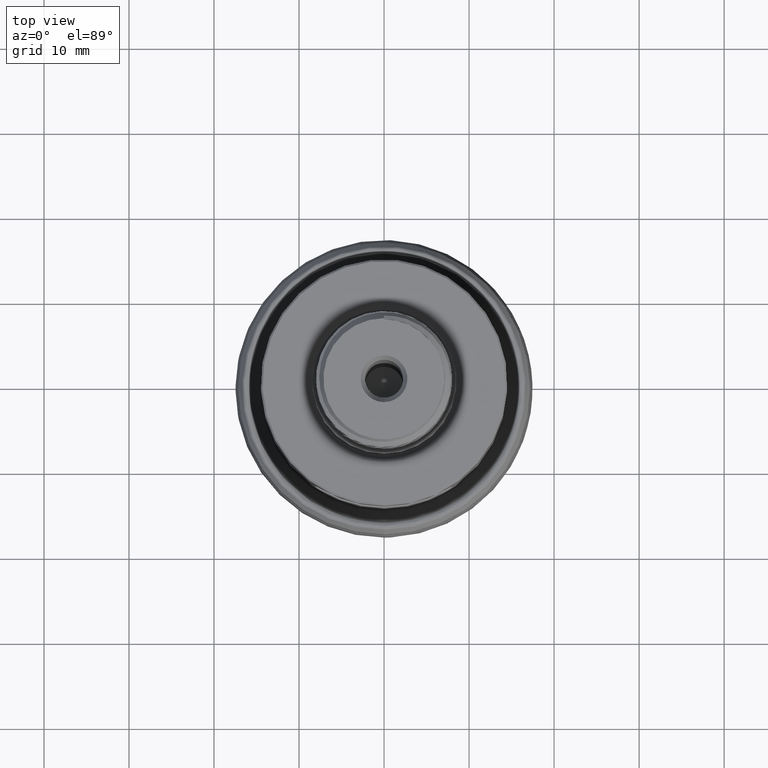
[diagram: clean part render]
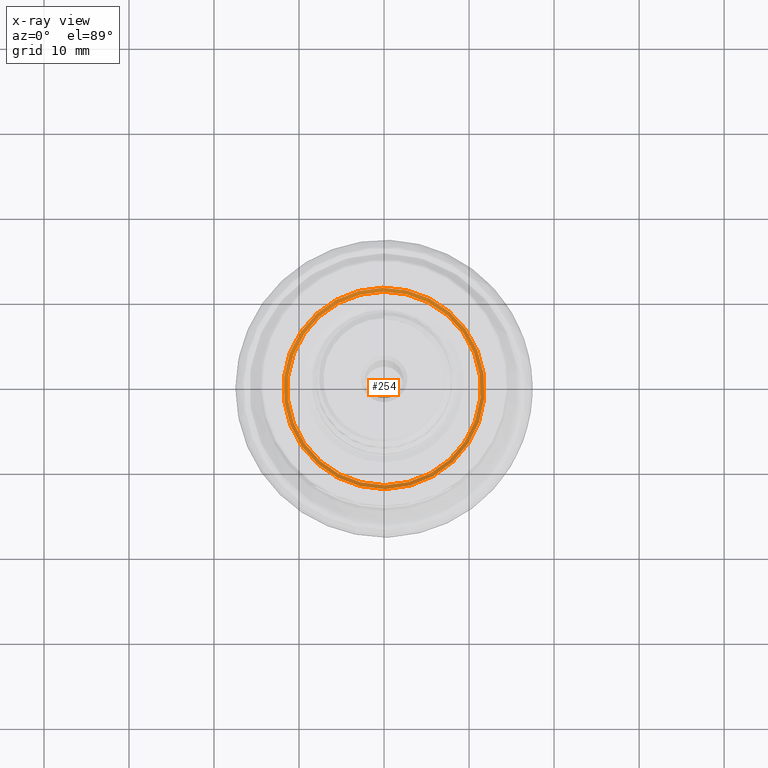
[diagram: x-ray — body ghosted, one internal face saturated and labeled with its STEP entity id]
A machine part, top view, then the same camera in x-ray: the body is ghosted and one INTERNAL B-rep face — a face not visible from any outside direction — is saturated and labeled: STEP entity #254.
In plain terms, the highlighted face is a SurfaceOfRevolution surface.
Its self-contained STEP definition (entity closure, byte-faithful):
#117=SURFACE_OF_REVOLUTION('',#965,#138);
#138=AXIS1_PLACEMENT('',#3574,#1266);
#254=ADVANCED_FACE('',(#388,#389),#117,.F.);
#388=FACE_BOUND('',#497,.T.);
#389=FACE_BOUND('',#498,.T.);
#497=EDGE_LOOP('',(#675));
#498=EDGE_LOOP('',(#676));
#675=ORIENTED_EDGE('',*,*,#852,.T.);
#676=ORIENTED_EDGE('',*,*,#853,.F.);
#763=VERTEX_POINT('',#3564);
#764=VERTEX_POINT('',#3568);
#852=EDGE_CURVE('',#763,#763,#906,.T.);
#853=EDGE_CURVE('',#764,#764,#907,.T.);
#906=CIRCLE('',#1057,11.8347391475876);
#907=CIRCLE('',#1058,11.3819950296002);
#965=B_SPLINE_CURVE_WITH_KNOTS('',3,(#3569,#3570,#3571,#3572,#3573),
 .UNSPECIFIED.,.F.,.F.,(4,1,4),(0.,0.5,1.),.UNSPECIFIED.);
#1057=AXIS2_PLACEMENT_3D('',#3563,#1260,#1261);
#1058=AXIS2_PLACEMENT_3D('',#3567,#1264,#1265);
#1260=DIRECTION('',(0.,1.17145536458252E-15,1.));
#1261=DIRECTION('',(0.,-1.,1.17263149062676E-15));
#1264=DIRECTION('',(0.,1.17145536458252E-15,1.));
#1265=DIRECTION('',(0.,-1.,1.14307079171893E-15));
#1266=DIRECTION('',(0.,1.17145536458252E-15,1.));
#3563=CARTESIAN_POINT('',(0.,5.64093885018961E-15,4.81532546671114));
#3564=CARTESIAN_POINT('',(0.,-11.8347391475876,4.81532546671116));
#3567=CARTESIAN_POINT('',(0.,5.22607151094395E-15,4.46117852113502));
#3568=CARTESIAN_POINT('',(0.,-11.3819950296002,4.46117852113504));
#3569=CARTESIAN_POINT('',(11.2616972130461,-1.65045046442466,4.4611785211352));
#3570=CARTESIAN_POINT('',(11.356200933226,-1.61132368257202,4.50436910555478));
#3571=CARTESIAN_POINT('',(11.5362847952334,-1.52606146948104,4.60798789889527));
#3572=CARTESIAN_POINT('',(11.6875691967688,-1.43070875262696,4.74220947011555));
#3573=CARTESIAN_POINT('',(11.7537848447018,-1.38188006567168,4.81532546671114));
#3574=CARTESIAN_POINT('',(0.,0.,0.));